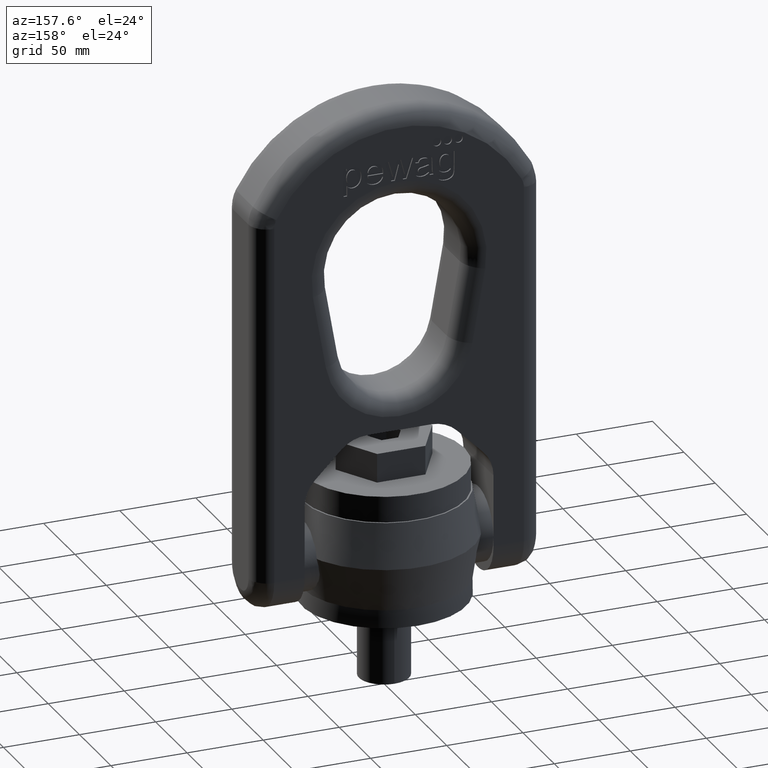
[diagram: clean part render]
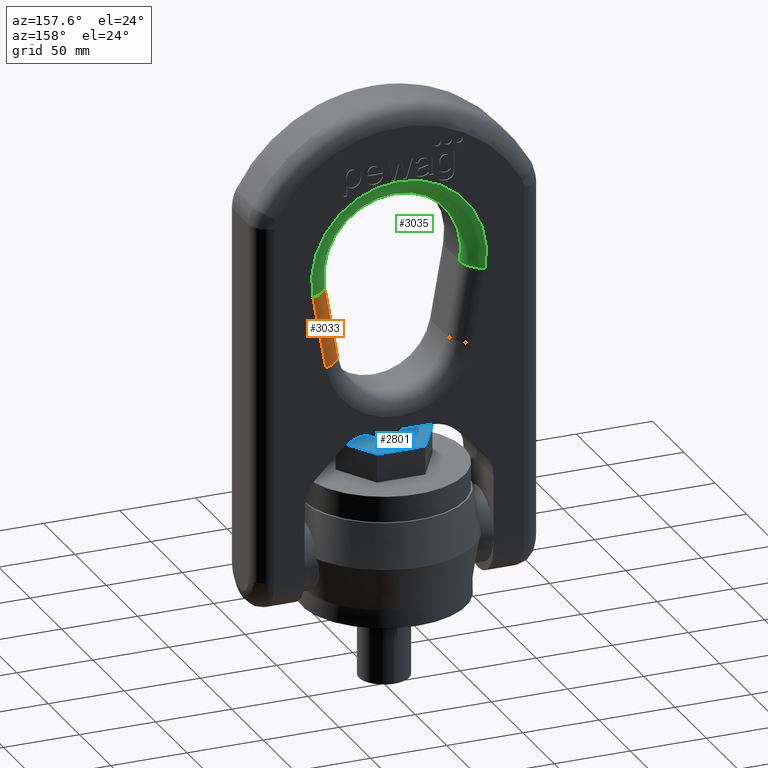
[diagram: same view with three faces highlighted in distinct colors, each labeled with its STEP entity id]
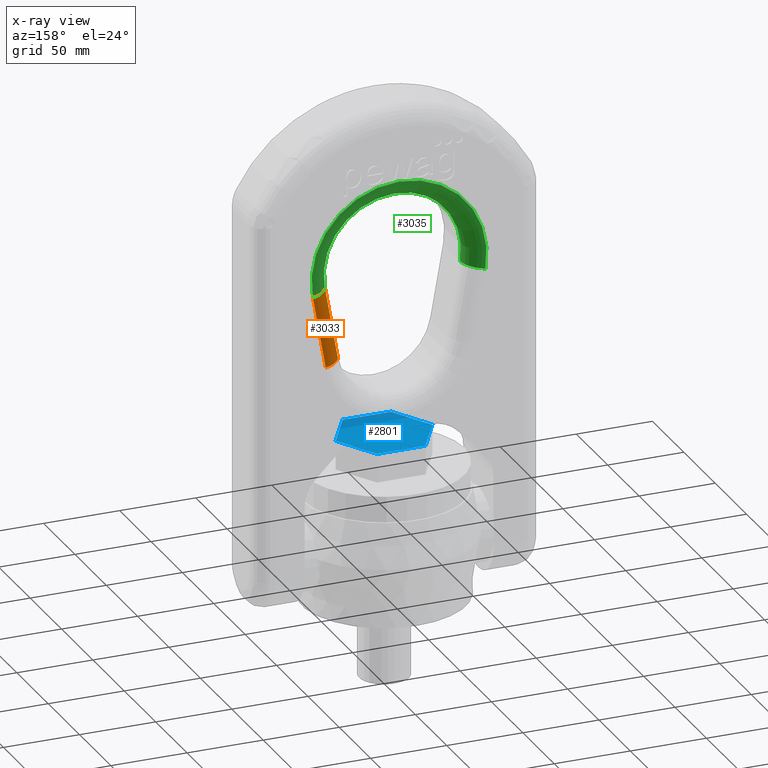
[diagram: x-ray of the same camera — body ghosted, the three highlighted faces saturated]
A machine part, auxiliary view with three faces highlighted in distinct colors.
The next image is the same camera in x-ray (body ghosted, the three faces saturated) — at least one of them is partly hidden behind the body in this view.
Their STEP definitions:

[orange] entity #3033 — the highlighted cylindrical surface (edge-blend (fillet) strip) has radius 12 mm, axis along (-0.1736, 0, -0.9848).
#1815=LINE('',#7395,#2123);
#1861=LINE('',#7736,#2169);
#2123=VECTOR('',#6260,1.);
#2169=VECTOR('',#6340,1.);
#2658=FACE_OUTER_BOUND('',#3426,.T.);
#3033=ADVANCED_FACE('',(#2658),#3065,.T.);
#3065=CYLINDRICAL_SURFACE('',#6052,12.);
#3426=EDGE_LOOP('',(#4669,#4670,#4671,#4672));
#4669=ORIENTED_EDGE('',*,*,#5742,.T.);
#4670=ORIENTED_EDGE('',*,*,#5357,.F.);
#4671=ORIENTED_EDGE('',*,*,#5743,.F.);
#4672=ORIENTED_EDGE('',*,*,#5263,.F.);
#4827=VERTEX_POINT('',#7396);
#4828=VERTEX_POINT('',#7397);
#4915=VERTEX_POINT('',#7731);
#4917=VERTEX_POINT('',#7737);
#5263=EDGE_CURVE('',#4827,#4828,#1815,.T.);
#5357=EDGE_CURVE('',#4915,#4917,#1861,.T.);
#5742=EDGE_CURVE('',#4827,#4917,#5820,.T.);
#5743=EDGE_CURVE('',#4828,#4915,#5821,.T.);
#5820=CIRCLE('',#6049,12.);
#5821=CIRCLE('',#6051,12.);
#6049=AXIS2_PLACEMENT_3D('',#9830,#6906,#6907);
#6051=AXIS2_PLACEMENT_3D('',#9832,#6910,#6911);
#6052=AXIS2_PLACEMENT_3D('',#9833,#6912,#6913);
#6260=DIRECTION('',(0.173648177666931,-4.0684217855581E-16,0.984807753012208));
#6340=DIRECTION('',(-0.173648177666931,4.0684217855581E-16,-0.984807753012208));
#6906=DIRECTION('',(0.173648177666931,-4.01642093812555E-16,0.984807753012208));
#6907=DIRECTION('',(0.984807753012208,0.,-0.173648177666931));
#6910=DIRECTION('',(0.173648177666928,-4.01642093812549E-16,0.984807753012208));
#6911=DIRECTION('',(0.984807753012208,0.,-0.173648177666928));
#6912=DIRECTION('',(-0.173648177666931,4.0684217855581E-16,-0.984807753012208));
#6913=DIRECTION('',(-0.984807753012208,0.,0.173648177666931));
#7395=CARTESIAN_POINT('',(56.626445798202,23.9999999999999,215.515229784152));
#7396=CARTESIAN_POINT('',(48.1416663753399,23.9999999999999,167.395654499807));
#7397=CARTESIAN_POINT('',(56.626445798202,23.9999999999999,215.515229784152));
#7731=CARTESIAN_POINT('',(44.8087527620555,11.9999999999999,217.599007916155));
#7736=CARTESIAN_POINT('',(36.3239733391934,11.9999999999999,169.47943263181));
#7737=CARTESIAN_POINT('',(36.3239733391934,11.9999999999999,169.47943263181));
#9830=CARTESIAN_POINT('',(48.1416663753399,11.9999999999999,167.395654499807));
#9832=CARTESIAN_POINT('',(56.626445798202,11.9999999999999,215.515229784152));
#9833=CARTESIAN_POINT('',(56.9456645986393,11.9999999999999,217.325609563552));

[blue] entity #2801 — the highlighted planar face has unit normal (0, 0, 1).
#1736=LINE('',#6976,#2044);
#1739=LINE('',#6982,#2047);
#1741=LINE('',#6986,#2049);
#1743=LINE('',#6990,#2051);
#1745=LINE('',#6994,#2053);
#1746=LINE('',#6996,#2054);
#1747=LINE('',#6998,#2055);
#1748=LINE('',#7001,#2056);
#1749=LINE('',#7003,#2057);
#1750=LINE('',#7005,#2058);
#1751=LINE('',#7007,#2059);
#1752=LINE('',#7009,#2060);
#2044=VECTOR('',#6107,1.);
#2047=VECTOR('',#6112,1.);
#2049=VECTOR('',#6116,1.);
#2051=VECTOR('',#6120,1.);
#2053=VECTOR('',#6124,1.);
#2054=VECTOR('',#6127,1.);
#2055=VECTOR('',#6130,1.);
#2056=VECTOR('',#6131,1.);
#2057=VECTOR('',#6132,1.);
#2058=VECTOR('',#6133,1.);
#2059=VECTOR('',#6134,1.);
#2060=VECTOR('',#6135,1.);
#2675=PLANE('',#5851);
#2801=ADVANCED_FACE('',(#3085,#3086),#2675,.T.);
#3085=FACE_BOUND('',#3160,.T.);
#3086=FACE_BOUND('',#3161,.T.);
#3160=EDGE_LOOP('',(#3479,#3480,#3481,#3482,#3483,#3484));
#3161=EDGE_LOOP('',(#3485,#3486,#3487,#3488,#3489,#3490));
#3479=ORIENTED_EDGE('',*,*,#5143,.F.);
#3480=ORIENTED_EDGE('',*,*,#5144,.F.);
#3481=ORIENTED_EDGE('',*,*,#5145,.F.);
#3482=ORIENTED_EDGE('',*,*,#5146,.F.);
#3483=ORIENTED_EDGE('',*,*,#5147,.F.);
#3484=ORIENTED_EDGE('',*,*,#5148,.F.);
#3485=ORIENTED_EDGE('',*,*,#5132,.T.);
#3486=ORIENTED_EDGE('',*,*,#5135,.T.);
#3487=ORIENTED_EDGE('',*,*,#5137,.T.);
#3488=ORIENTED_EDGE('',*,*,#5139,.T.);
#3489=ORIENTED_EDGE('',*,*,#5141,.T.);
#3490=ORIENTED_EDGE('',*,*,#5142,.T.);
#4711=VERTEX_POINT('',#6975);
#4712=VERTEX_POINT('',#6977);
#4713=VERTEX_POINT('',#6981);
#4714=VERTEX_POINT('',#6985);
#4715=VERTEX_POINT('',#6989);
#4716=VERTEX_POINT('',#6993);
#4717=VERTEX_POINT('',#6999);
#4718=VERTEX_POINT('',#7000);
#4719=VERTEX_POINT('',#7002);
#4720=VERTEX_POINT('',#7004);
#4721=VERTEX_POINT('',#7006);
#4722=VERTEX_POINT('',#7008);
#5132=EDGE_CURVE('',#4712,#4711,#1736,.T.);
#5135=EDGE_CURVE('',#4711,#4713,#1739,.T.);
#5137=EDGE_CURVE('',#4713,#4714,#1741,.T.);
#5139=EDGE_CURVE('',#4714,#4715,#1743,.T.);
#5141=EDGE_CURVE('',#4715,#4716,#1745,.T.);
#5142=EDGE_CURVE('',#4716,#4712,#1746,.T.);
#5143=EDGE_CURVE('',#4717,#4718,#1747,.T.);
#5144=EDGE_CURVE('',#4719,#4717,#1748,.T.);
#5145=EDGE_CURVE('',#4720,#4719,#1749,.T.);
#5146=EDGE_CURVE('',#4721,#4720,#1750,.T.);
#5147=EDGE_CURVE('',#4722,#4721,#1751,.T.);
#5148=EDGE_CURVE('',#4718,#4722,#1752,.T.);
#5851=AXIS2_PLACEMENT_3D('',#7010,#6136,#6137);
#6107=DIRECTION('',(0.5,-0.866025403784439,0.));
#6112=DIRECTION('',(1.,0.,0.));
#6116=DIRECTION('',(0.5,0.866025403784439,0.));
#6120=DIRECTION('',(-0.5,0.866025403784439,0.));
#6124=DIRECTION('',(-1.,0.,0.));
#6127=DIRECTION('',(-0.5,-0.866025403784439,0.));
#6130=DIRECTION('',(0.5,-0.866025403784439,0.));
#6131=DIRECTION('',(-0.5,-0.866025403784439,0.));
#6132=DIRECTION('',(-1.,0.,0.));
#6133=DIRECTION('',(-0.5,0.866025403784439,0.));
#6134=DIRECTION('',(0.5,0.866025403784439,0.));
#6135=DIRECTION('',(1.,0.,0.));
#6136=DIRECTION('',(0.,0.,1.));
#6137=DIRECTION('',(1.,0.,0.));
#6975=CARTESIAN_POINT('',(-15.8771324027147,-27.5,106.));
#6976=CARTESIAN_POINT('',(-31.7542648054294,0.,106.));
#6977=CARTESIAN_POINT('',(-31.7542648054294,0.,106.));
#6981=CARTESIAN_POINT('',(15.8771324027147,-27.5,106.));
#6982=CARTESIAN_POINT('',(-15.8771324027147,-27.5,106.));
#6985=CARTESIAN_POINT('',(31.7542648054294,0.,106.));
#6986=CARTESIAN_POINT('',(15.8771324027147,-27.5,106.));
#6989=CARTESIAN_POINT('',(15.8771324027147,27.5,106.));
#6990=CARTESIAN_POINT('',(31.7542648054294,0.,106.));
#6993=CARTESIAN_POINT('',(-15.8771324027147,27.5,106.));
#6994=CARTESIAN_POINT('',(15.8771324027147,27.5,106.));
#6996=CARTESIAN_POINT('',(-15.8771324027147,27.5,106.));
#6998=CARTESIAN_POINT('',(-10.9696551146029,0.,106.));
#6999=CARTESIAN_POINT('',(-10.9696551146029,0.,106.));
#7000=CARTESIAN_POINT('',(-5.48482755730144,-9.5,106.));
#7001=CARTESIAN_POINT('',(-5.48482755730144,9.5,106.));
#7002=CARTESIAN_POINT('',(-5.48482755730144,9.5,106.));
#7003=CARTESIAN_POINT('',(5.48482755730144,9.5,106.));
#7004=CARTESIAN_POINT('',(5.48482755730144,9.5,106.));
#7005=CARTESIAN_POINT('',(10.9696551146029,0.,106.));
#7006=CARTESIAN_POINT('',(10.9696551146029,-1.73472347597681E-15,106.));
#7007=CARTESIAN_POINT('',(5.48482755730144,-9.5,106.));
#7008=CARTESIAN_POINT('',(5.48482755730144,-9.5,106.));
#7009=CARTESIAN_POINT('',(-5.48482755730144,-9.5,106.));
#7010=CARTESIAN_POINT('',(0.,0.,106.));

[green] entity #3035 — the highlighted toroidal blend (fillet) surface has major radius 57.5 mm and minor (blend) radius 12 mm.
#204=TOROIDAL_SURFACE('',#6055,57.5,12.);
#2660=FACE_OUTER_BOUND('',#3428,.T.);
#3035=ADVANCED_FACE('',(#2660),#204,.T.);
#3428=EDGE_LOOP('',(#4677,#4678,#4679,#4680));
#4677=ORIENTED_EDGE('',*,*,#5743,.T.);
#4678=ORIENTED_EDGE('',*,*,#5354,.F.);
#4679=ORIENTED_EDGE('',*,*,#5744,.T.);
#4680=ORIENTED_EDGE('',*,*,#5264,.F.);
#4828=VERTEX_POINT('',#7397);
#4829=VERTEX_POINT('',#7399);
#4913=VERTEX_POINT('',#7725);
#4915=VERTEX_POINT('',#7731);
#5264=EDGE_CURVE('',#4828,#4829,#5775,.T.);
#5354=EDGE_CURVE('',#4913,#4915,#5787,.T.);
#5743=EDGE_CURVE('',#4828,#4915,#5821,.T.);
#5744=EDGE_CURVE('',#4913,#4829,#5822,.T.);
#5775=CIRCLE('',#5882,57.5);
#5787=CIRCLE('',#5896,45.5);
#5821=CIRCLE('',#6051,12.);
#5822=CIRCLE('',#6053,12.);
#5882=AXIS2_PLACEMENT_3D('',#7398,#6261,#6262);
#5896=AXIS2_PLACEMENT_3D('',#7730,#6333,#6334);
#6051=AXIS2_PLACEMENT_3D('',#9832,#6910,#6911);
#6053=AXIS2_PLACEMENT_3D('',#9834,#6914,#6915);
#6055=AXIS2_PLACEMENT_3D('',#9836,#6918,#6919);
#6261=DIRECTION('',(-2.34291072916505E-15,-1.,0.));
#6262=DIRECTION('',(-1.,2.35319010654245E-15,0.));
#6333=DIRECTION('',(2.34291072916505E-15,1.,0.));
#6334=DIRECTION('',(-1.,2.32567323152935E-15,0.));
#6910=DIRECTION('',(0.173648177666928,-4.01642093812549E-16,0.984807753012208));
#6911=DIRECTION('',(0.984807753012208,0.,-0.173648177666928));
#6914=DIRECTION('',(-0.173648177666931,-1.87618341081977E-15,0.984807753012208));
#6915=DIRECTION('',(0.984807753012208,0.,0.173648177666931));
#6918=DIRECTION('',(2.34291072916505E-15,1.,0.));
#6919=DIRECTION('',(-1.,2.34624470132115E-15,0.));
#7397=CARTESIAN_POINT('',(56.626445798202,23.9999999999999,215.515229784152));
#7398=CARTESIAN_POINT('',(2.81149287499806E-14,24.,225.5));
#7399=CARTESIAN_POINT('',(-56.626445798202,24.0000000000001,215.515229784152));
#7725=CARTESIAN_POINT('',(-44.8087527620555,12.0000000000001,217.599007916155));
#7730=CARTESIAN_POINT('',(0.,12.,225.5));
#7731=CARTESIAN_POINT('',(44.8087527620555,11.9999999999999,217.599007916155));
#9832=CARTESIAN_POINT('',(56.626445798202,11.9999999999999,215.515229784152));
#9834=CARTESIAN_POINT('',(-56.626445798202,12.0000000000001,215.515229784152));
#9836=CARTESIAN_POINT('',(0.,12.,225.5));